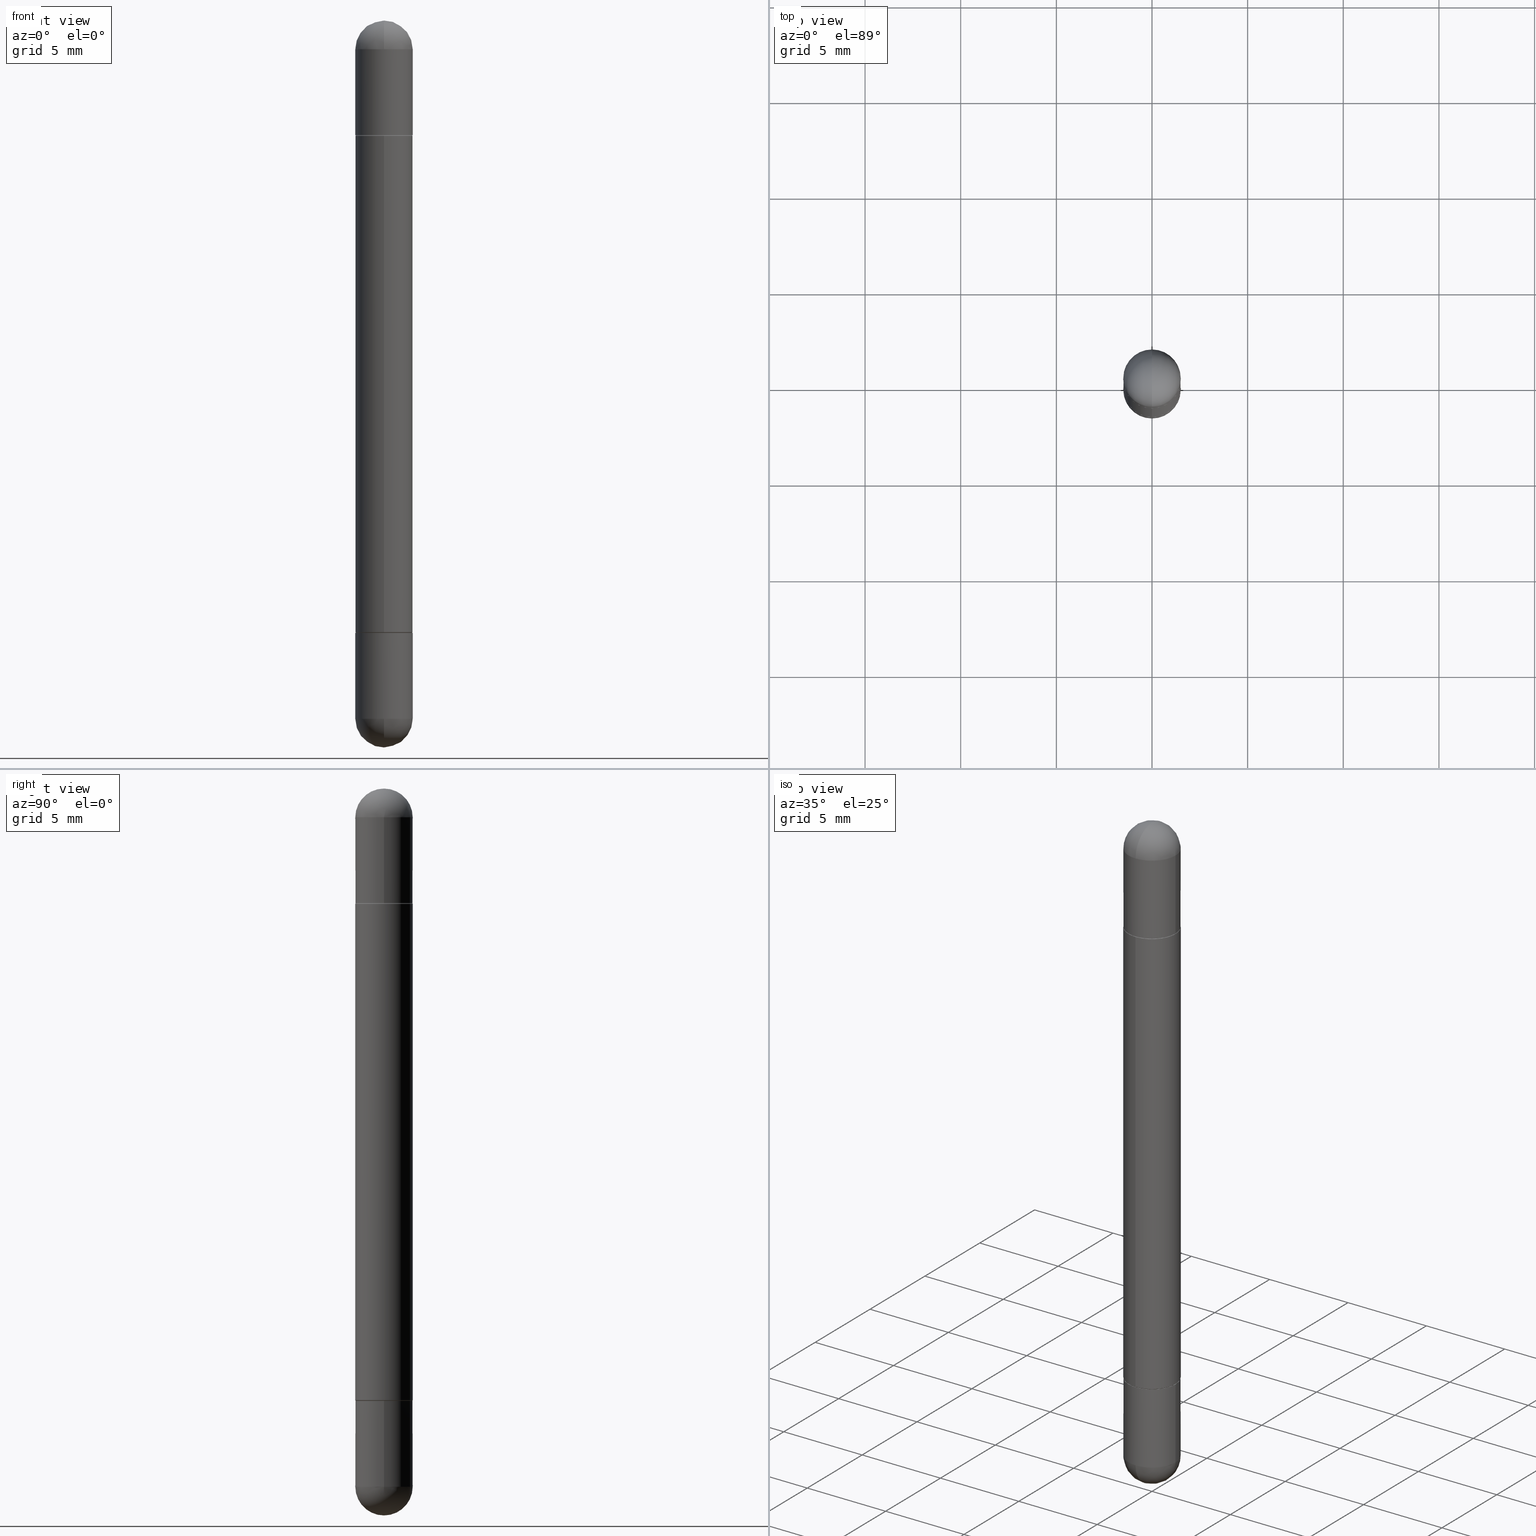
[diagram: canonical four-view strip — front | top / right | iso, engineering-drawing reading convention]
A machine part, canonical four-view strip (front | top / right | iso — engineering-drawing reading convention). The complete STEP part file that produces these views, byte-faithful:
ISO-10303-21;
HEADER;
FILE_DESCRIPTION (( 'STEP AP203' ),
    '1' );
FILE_NAME ('41522.STEP',
    '2024-03-01T12:45:31',
    ( '' ),
    ( '' ),
    'SwSTEP 2.0',
    'SolidWorks 2023',
    '' );
FILE_SCHEMA (( 'CONFIG_CONTROL_DESIGN' ));
ENDSEC;

DATA;
#1 = CALENDAR_DATE ( 2024, 1, 3 ) ;
#2 = CIRCLE ( 'NONE', #788, 0.05905000000000001914 ) ;
#3 = AXIS2_PLACEMENT_3D ( 'NONE', #287, #796, #14 ) ;
#4 = AXIS2_PLACEMENT_3D ( 'NONE', #51, #297, #739 ) ;
#5 = COORDINATED_UNIVERSAL_TIME_OFFSET ( 5, 0, .BEHIND. ) ;
#6 = ADVANCED_FACE ( 'NONE', ( #104 ), #302, .T. ) ;
#7 = CYLINDRICAL_SURFACE ( 'NONE', #22, 0.05905000000000001914 ) ;
#8 = ORIENTED_EDGE ( 'NONE', *, *, #141, .T. ) ;
#9 = DATE_AND_TIME ( #559, #142 ) ;
#10 = VERTEX_POINT ( 'NONE', #166 ) ;
#11 = ADVANCED_FACE ( 'NONE', ( #447 ), #140, .T. ) ;
#12 = VERTEX_POINT ( 'NONE', #409 ) ;
#13 = ORIENTED_EDGE ( 'NONE', *, *, #378, .T. ) ;
#14 = DIRECTION ( 'NONE',  ( -6.982962677686265922E-15, -1.000000000000000000, 4.706025828879006993E-15 ) ) ;
#15 = CARTESIAN_POINT ( 'NONE',  ( -0.05905000000000001914, -4.303062891628101254E-15, -0.05905000000000028976 ) ) ;
#16 = ORIENTED_EDGE ( 'NONE', *, *, #163, .T. ) ;
#17 = DIRECTION ( 'NONE',  ( 1.000000000000000000, -6.982962677686270655E-15, 0.000000000000000000 ) ) ;
#18 = EDGE_CURVE ( 'NONE', #411, #633, #43, .T. ) ;
#19 = EDGE_LOOP ( 'NONE', ( #646, #353, #225, #491, #219 ) ) ;
#20 = CYLINDRICAL_SURFACE ( 'NONE', #495, 0.05905000000000007465 ) ;
#21 = AXIS2_PLACEMENT_3D ( 'NONE', #146, #393, #640 ) ;
#22 = AXIS2_PLACEMENT_3D ( 'NONE', #644, #780, #337 ) ;
#23 = ORIENTED_EDGE ( 'NONE', *, *, #627, .T. ) ;
#24 = DIRECTION ( 'NONE',  ( -4.937700262165390546E-15, -0.7071067811866658115, -0.7071067811864292230 ) ) ;
#25 = CC_DESIGN_APPROVAL ( #307, ( #450 ) ) ;
#26 = CARTESIAN_POINT ( 'NONE',  ( 4.123439461174084467E-16, 0.05904999999999487742, -0.05905000000000008159 ) ) ;
#27 = EDGE_LOOP ( 'NONE', ( #220, #770, #701, #391 ) ) ;
#28 = ORIENTED_EDGE ( 'NONE', *, *, #192, .T. ) ;
#29 = APPROVAL_DATE_TIME ( #143, #84 ) ;
#30 = ORIENTED_EDGE ( 'NONE', *, *, #132, .T. ) ;
#31 = LINE ( 'NONE', #395, #76 ) ;
#32 = DIRECTION ( 'NONE',  ( -2.452862621315973370E-29, 3.480892974745964605E-15, 1.000000000000000000 ) ) ;
#33 = DIRECTION ( 'NONE',  ( 1.000000000000000000, -6.982962677686265922E-15, 4.883557194083112340E-29 ) ) ;
#34 = ORIENTED_EDGE ( 'NONE', *, *, #420, .T. ) ;
#35 = ORIENTED_EDGE ( 'NONE', *, *, #485, .T. ) ;
#36 = ORIENTED_EDGE ( 'NONE', *, *, #378, .F. ) ;
#37 = ADVANCED_FACE ( 'NONE', ( #339 ), #20, .T. ) ;
#38 = CARTESIAN_POINT ( 'NONE',  ( 0.05905000000000001914, -4.811261284925853162E-15, -0.2362000000000003264 ) ) ;
#39 = DIRECTION ( 'NONE',  ( -6.982962677686265922E-15, -1.000000000000000000, -3.480892974745964605E-15 ) ) ;
#40 = DIRECTION ( 'NONE',  ( -6.982962677686265922E-15, -1.000000000000000000, -3.529519371659254850E-15 ) ) ;
#41 = CARTESIAN_POINT ( 'NONE',  ( 3.090361616595994104E-29, -4.385577058882440771E-15, -1.259899999999999798 ) ) ;
#42 = ORIENTED_EDGE ( 'NONE', *, *, #231, .F. ) ;
#43 = CIRCLE ( 'NONE', #21, 0.05905000000000001914 ) ;
#44 = CARTESIAN_POINT ( 'NONE',  ( 3.090361616595994104E-29, -4.385577058882440771E-15, -0.2362000000000003264 ) ) ;
#45 = EDGE_CURVE ( 'NONE', #211, #411, #137, .T. ) ;
#46 = AXIS2_PLACEMENT_3D ( 'NONE', #174, #180, #549 ) ;
#47 = DIRECTION ( 'NONE',  ( -2.452862621315973370E-29, 3.480892974745964605E-15, -1.000000000000000000 ) ) ;
#48 = FACE_OUTER_BOUND ( 'NONE', #218, .T. ) ;
#49 =( GEOMETRIC_REPRESENTATION_CONTEXT ( 3 ) GLOBAL_UNCERTAINTY_ASSIGNED_CONTEXT ( ( #410 ) ) GLOBAL_UNIT_ASSIGNED_CONTEXT ( ( #322, #757, #436 ) ) REPRESENTATION_CONTEXT ( 'NONE', 'WORKASPACE' ) );
#50 = DIRECTION ( 'NONE',  ( -2.445468806185136597E-29, 3.491481338843145583E-15, 1.000000000000000000 ) ) ;
#51 = CARTESIAN_POINT ( 'NONE',  ( 3.183141170014464762E-29, -5.491615626124592102E-15, -0.05905000000000028976 ) ) ;
#52 = CARTESIAN_POINT ( 'NONE',  ( 3.081046148912652946E-29, -4.398917338808479031E-15, -1.259899999999999798 ) ) ;
#53 = CARTESIAN_POINT ( 'NONE',  ( -4.123439461173745257E-16, -0.05905000000000007465, -1.496100000000000430 ) ) ;
#54 = ORIENTED_EDGE ( 'NONE', *, *, #555, .F. ) ;
#55 = ADVANCED_FACE ( 'NONE', ( #818 ), #522, .T. ) ;
#56 = CARTESIAN_POINT ( 'NONE',  ( 3.514260947928350449E-29, -5.017433257984542594E-15, -1.437049999999999939 ) ) ;
#57 = CARTESIAN_POINT ( 'NONE',  ( -4.123439461173745257E-16, -0.05905000000000007465, -1.496100000000000430 ) ) ;
#58 = AXIS2_PLACEMENT_3D ( 'NONE', #89, #583, #100 ) ;
#59 = AXIS2_PLACEMENT_3D ( 'NONE', #41, #367, #300 ) ;
#60 = DIRECTION ( 'NONE',  ( 6.982962677686266711E-15, 1.000000000000000000, 0.000000000000000000 ) ) ;
#61 = AXIS2_PLACEMENT_3D ( 'NONE', #308, #415, #368 ) ;
#62 = DIRECTION ( 'NONE',  ( -2.452862621315973370E-29, 3.480892974745964605E-15, -1.000000000000000000 ) ) ;
#63 = CARTESIAN_POINT ( 'NONE',  ( 4.123439461174049462E-16, 0.05904999999999561988, -0.2362000000000000766 ) ) ;
#64 = APPROVAL_ROLE ( '' ) ;
#65 = AXIS2_PLACEMENT_3D ( 'NONE', #593, #247, #277 ) ;
#66 = COORDINATED_UNIVERSAL_TIME_OFFSET ( 5, 0, .BEHIND. ) ;
#67 = CC_DESIGN_PERSON_AND_ORGANIZATION_ASSIGNMENT ( #754, #632, ( #815 ) ) ;
#68 = PERSON_AND_ORGANIZATION ( #494, #382 ) ;
#69 = DIRECTION ( 'NONE',  ( 0.000000000000000000, 0.000000000000000000, 1.000000000000000000 ) ) ;
#70 = CC_DESIGN_PERSON_AND_ORGANIZATION_ASSIGNMENT ( #763, #434, ( #83 ) ) ;
#71 = CALENDAR_DATE ( 2024, 1, 3 ) ;
#72 = VERTEX_POINT ( 'NONE', #349 ) ;
#73 = CARTESIAN_POINT ( 'NONE',  ( 0.05905000000000001914, -4.811261284925853162E-15, -1.259899999999999798 ) ) ;
#74 = AXIS2_PLACEMENT_3D ( 'NONE', #165, #598, #235 ) ;
#75 = ORIENTED_EDGE ( 'NONE', *, *, #420, .F. ) ;
#76 = VECTOR ( 'NONE', #105, 39.37007874015748143 ) ;
#77 = DATE_AND_TIME ( #194, #700 ) ;
#78 = EDGE_CURVE ( 'NONE', #708, #265, #582, .T. ) ;
#79 = ORIENTED_EDGE ( 'NONE', *, *, #446, .T. ) ;
#80 = VERTEX_POINT ( 'NONE', #26 ) ;
#81 = ORIENTED_EDGE ( 'NONE', *, *, #595, .T. ) ;
#82 = DIRECTION ( 'NONE',  ( -2.445468806185136877E-29, 3.491481338843145188E-15, -1.000000000000000000 ) ) ;
#83 = PRODUCT_DEFINITION ( 'UNKNOWN', '', #450, #724 ) ;
#84 = APPROVAL ( #504, 'UNSPECIFIED' ) ;
#85 = DIRECTION ( 'NONE',  ( -1.000000000000000000, 7.105427357601001070E-15, -4.926315508542082329E-29 ) ) ;
#86 = EDGE_LOOP ( 'NONE', ( #91, #767 ) ) ;
#87 = ORIENTED_EDGE ( 'NONE', *, *, #553, .T. ) ;
#88 = FACE_OUTER_BOUND ( 'NONE', #511, .T. ) ;
#89 = CARTESIAN_POINT ( 'NONE',  ( 3.090361616595994104E-29, -4.385577058882440771E-15, -0.2362000000000003264 ) ) ;
#90 = CARTESIAN_POINT ( 'NONE',  ( -0.05905000000000001914, -4.303062891628101254E-15, -0.2362000000000003264 ) ) ;
#91 = ORIENTED_EDGE ( 'NONE', *, *, #677, .T. ) ;
#92 = CARTESIAN_POINT ( 'NONE',  ( 3.514260947928350449E-29, -5.017433257984542594E-15, -1.437049999999999939 ) ) ;
#93 = ORIENTED_EDGE ( 'NONE', *, *, #329, .T. ) ;
#94 = VERTEX_POINT ( 'NONE', #169 ) ;
#95 = CIRCLE ( 'NONE', #801, 0.05905000000000001914 ) ;
#96 = CONICAL_SURFACE ( 'NONE', #124, 0.05804999999999999744, 0.7853981633976190313 ) ;
#97 = EDGE_LOOP ( 'NONE', ( #150, #79, #774, #42, #575 ) ) ;
#98 = FACE_OUTER_BOUND ( 'NONE', #216, .T. ) ;
#99 = AXIS2_PLACEMENT_3D ( 'NONE', #303, #298, #619 ) ;
#100 = DIRECTION ( 'NONE',  ( -6.982962677686265922E-15, -1.000000000000000000, -3.480892974745964605E-15 ) ) ;
#101 = CARTESIAN_POINT ( 'NONE',  ( 0.000000000000000000, 0.000000000000000000, -1.496100000000000207 ) ) ;
#102 = DIRECTION ( 'NONE',  ( 1.000000000000000000, -6.982962677686270655E-15, 0.000000000000000000 ) ) ;
#103 = ORIENTED_EDGE ( 'NONE', *, *, #600, .T. ) ;
#104 = FACE_OUTER_BOUND ( 'NONE', #183, .T. ) ;
#105 = DIRECTION ( 'NONE',  ( -2.452862621315973651E-29, 3.480892974745964605E-15, -1.000000000000000000 ) ) ;
#106 = CARTESIAN_POINT ( 'NONE',  ( 3.090361616595994104E-29, -4.385577058882440771E-15, -0.2362000000000003264 ) ) ;
#107 = EDGE_LOOP ( 'NONE', ( #472, #34, #670, #400 ) ) ;
#108 = ORIENTED_EDGE ( 'NONE', *, *, #529, .F. ) ;
#109 = ADVANCED_FACE ( 'NONE', ( #215 ), #584, .T. ) ;
#110 = ORIENTED_EDGE ( 'NONE', *, *, #444, .T. ) ;
#111 = DIRECTION ( 'NONE',  ( -0.000000000000000000, -0.000000000000000000, -1.000000000000000000 ) ) ;
#112 = CARTESIAN_POINT ( 'NONE',  ( 3.514260947928350449E-29, -5.017433257984542594E-15, -0.05905000000000028976 ) ) ;
#113 = DIRECTION ( 'NONE',  ( 1.000000000000000000, -6.982962677686270655E-15, 0.000000000000000000 ) ) ;
#114 = PLANE ( 'NONE',  #345 ) ;
#115 = ORIENTED_EDGE ( 'NONE', *, *, #314, .F. ) ;
#116 = DIRECTION ( 'NONE',  ( -6.982962677686265922E-15, -1.000000000000000000, -4.626330217890363814E-15 ) ) ;
#117 = PLANE ( 'NONE',  #737 ) ;
#118 = ADVANCED_FACE ( 'NONE', ( #271 ), #289, .T. ) ;
#119 = ORIENTED_EDGE ( 'NONE', *, *, #677, .F. ) ;
#120 = CYLINDRICAL_SURFACE ( 'NONE', #469, 0.05905000000000007465 ) ;
#121 = DIRECTION ( 'NONE',  ( 2.438088387897960049E-29, -3.491481338843145188E-15, 1.000000000000000000 ) ) ;
#122 = SPHERICAL_SURFACE ( 'NONE', #716, 0.05905000000000025506 ) ;
#123 = LINE ( 'NONE', #810, #721 ) ;
#124 = AXIS2_PLACEMENT_3D ( 'NONE', #44, #535, #775 ) ;
#125 = DIRECTION ( 'NONE',  ( 2.445468806185136597E-29, -3.491481338843145583E-15, 1.000000000000000000 ) ) ;
#126 = EDGE_CURVE ( 'NONE', #263, #187, #384, .T. ) ;
#127 = FACE_OUTER_BOUND ( 'NONE', #744, .T. ) ;
#128 = FACE_OUTER_BOUND ( 'NONE', #324, .T. ) ;
#129 = APPLICATION_PROTOCOL_DEFINITION ( 'international standard', 'config_control_design', 1994, #309 ) ;
#130 = FACE_OUTER_BOUND ( 'NONE', #394, .T. ) ;
#131 = CIRCLE ( 'NONE', #585, 0.05905000000000013710 ) ;
#132 = EDGE_CURVE ( 'NONE', #187, #641, #313, .T. ) ;
#133 = DIRECTION ( 'NONE',  ( -1.000000000000000000, 6.982962677686265922E-15, -4.883557194083112340E-29 ) ) ;
#134 = APPROVAL_ROLE ( '' ) ;
#135 = DATE_AND_TIME ( #1, #275 ) ;
#136 = ORIENTED_EDGE ( 'NONE', *, *, #512, .T. ) ;
#137 = CIRCLE ( 'NONE', #483, 0.05905000000000025506 ) ;
#138 = ORIENTED_EDGE ( 'NONE', *, *, #163, .F. ) ;
#139 = AXIS2_PLACEMENT_3D ( 'NONE', #435, #817, #500 ) ;
#140 = SPHERICAL_SURFACE ( 'NONE', #448, 0.05905000000000025506 ) ;
#141 = EDGE_CURVE ( 'NONE', #471, #201, #720, .T. ) ;
#142 = LOCAL_TIME ( 7, 45, 31.00000000000000000, #687 ) ;
#143 = DATE_AND_TIME ( #663, #684 ) ;
#144 = ORIENTED_EDGE ( 'NONE', *, *, #344, .F. ) ;
#145 = FACE_OUTER_BOUND ( 'NONE', #648, .T. ) ;
#146 = CARTESIAN_POINT ( 'NONE',  ( 3.514260947928350449E-29, -5.017433257984542594E-15, -0.05905000000000028976 ) ) ;
#147 = EDGE_LOOP ( 'NONE', ( #36, #16, #658, #795 ) ) ;
#148 = LINE ( 'NONE', #590, #532 ) ;
#149 = CARTESIAN_POINT ( 'NONE',  ( -4.053609834396568584E-16, -0.05805000000000438282, -1.259899999999999576 ) ) ;
#150 = ORIENTED_EDGE ( 'NONE', *, *, #695, .F. ) ;
#151 = ORIENTED_EDGE ( 'NONE', *, *, #618, .F. ) ;
#152 = VERTEX_POINT ( 'NONE', #728 ) ;
#153 = CARTESIAN_POINT ( 'NONE',  ( -4.123439461173499231E-16, -0.05905000000000267674, -0.7480500000000001037 ) ) ;
#154 = DIRECTION ( 'NONE',  ( 2.452862621315973370E-29, -3.480892974745964605E-15, 1.000000000000000000 ) ) ;
#155 = ORIENTED_EDGE ( 'NONE', *, *, #186, .T. ) ;
#156 = ORIENTED_EDGE ( 'NONE', *, *, #538, .F. ) ;
#157 = VECTOR ( 'NONE', #319, 39.37007874015748143 ) ;
#158 = VERTEX_POINT ( 'NONE', #200 ) ;
#159 = AXIS2_PLACEMENT_3D ( 'NONE', #63, #673, #239 ) ;
#160 = VERTEX_POINT ( 'NONE', #442 ) ;
#161 = FACE_OUTER_BOUND ( 'NONE', #27, .T. ) ;
#162 = DIRECTION ( 'NONE',  ( 1.000000000000000000, -6.982962677686266711E-15, 0.000000000000000000 ) ) ;
#163 = EDGE_CURVE ( 'NONE', #519, #424, #689, .T. ) ;
#164 = VERTEX_POINT ( 'NONE', #15 ) ;
#165 = CARTESIAN_POINT ( 'NONE',  ( 3.090361616595994104E-29, -4.385577058882440771E-15, -0.2362000000000003264 ) ) ;
#166 = CARTESIAN_POINT ( 'NONE',  ( 4.016821577695544194E-16, 0.05804999999999560512, -0.2362000000000001321 ) ) ;
#167 = ORIENTED_EDGE ( 'NONE', *, *, #805, .T. ) ;
#168 = DIRECTION ( 'NONE',  ( 1.000000000000000000, -6.982962677686270655E-15, 0.000000000000000000 ) ) ;
#169 = CARTESIAN_POINT ( 'NONE',  ( 3.330070981488499955E-29, -5.694171829508798064E-15, -3.414809992080329023E-17 ) ) ;
#170 = ORIENTED_EDGE ( 'NONE', *, *, #126, .T. ) ;
#171 = DIRECTION ( 'NONE',  ( -2.445468806185136597E-29, 3.491481338843145583E-15, 1.000000000000000000 ) ) ;
#172 = EDGE_CURVE ( 'NONE', #637, #366, #272, .T. ) ;
#173 = CARTESIAN_POINT ( 'NONE',  ( 3.090361616595994104E-29, -4.385577058882440771E-15, -0.2362000000000003264 ) ) ;
#174 = CARTESIAN_POINT ( 'NONE',  ( 0.000000000000000000, 0.000000000000000000, 0.000000000000000000 ) ) ;
#175 = FACE_OUTER_BOUND ( 'NONE', #390, .T. ) ;
#176 = EDGE_CURVE ( 'NONE', #594, #366, #705, .T. ) ;
#177 = AXIS2_PLACEMENT_3D ( 'NONE', #335, #154, #40 ) ;
#178 = DIRECTION ( 'NONE',  ( -1.000000000000000000, 6.982962677686265922E-15, 4.883557194083112340E-29 ) ) ;
#179 = AXIS2_PLACEMENT_3D ( 'NONE', #718, #111, #599 ) ;
#180 = DIRECTION ( 'NONE',  ( -2.445468806185136597E-29, 3.491481338843145583E-15, 1.000000000000000000 ) ) ;
#181 = CARTESIAN_POINT ( 'NONE',  ( 3.514260947928350449E-29, -5.017433257984542594E-15, -0.05905000000000028976 ) ) ;
#182 = FACE_OUTER_BOUND ( 'NONE', #725, .T. ) ;
#183 = EDGE_LOOP ( 'NONE', ( #343, #103, #54, #356 ) ) ;
#184 = CARTESIAN_POINT ( 'NONE',  ( 3.087908753974678912E-29, -4.382096165907695555E-15, -0.2372000000000001330 ) ) ;
#185 = DIRECTION ( 'NONE',  ( 2.452862621315973370E-29, -3.480892974745964605E-15, 1.000000000000000000 ) ) ;
#186 = EDGE_CURVE ( 'NONE', #263, #781, #735, .T. ) ;
#187 = VERTEX_POINT ( 'NONE', #90 ) ;
#188 = DIRECTION ( 'NONE',  ( -2.452862621315973370E-29, 3.480892974745964605E-15, 1.000000000000000000 ) ) ;
#189 = DIRECTION ( 'NONE',  ( -6.982962677686265922E-15, -1.000000000000000000, -3.529519371659254850E-15 ) ) ;
#190 = CIRCLE ( 'NONE', #566, 0.05905000000000001914 ) ;
#191 = AXIS2_PLACEMENT_3D ( 'NONE', #243, #608, #542 ) ;
#192 = EDGE_CURVE ( 'NONE', #452, #637, #365, .T. ) ;
#193 = CARTESIAN_POINT ( 'NONE',  ( 3.081046148912652946E-29, -4.398917338808479031E-15, -0.2362000000000003264 ) ) ;
#194 = CALENDAR_DATE ( 2024, 1, 3 ) ;
#195 =( LENGTH_UNIT ( ) NAMED_UNIT ( * ) SI_UNIT ( $, .METRE. ) );
#196 = LINE ( 'NONE', #626, #719 ) ;
#197 = ADVANCED_FACE ( 'NONE', ( #48 ), #612, .T. ) ;
#198 = CIRCLE ( 'NONE', #403, 0.05804999999999999744 ) ;
#199 = AXIS2_PLACEMENT_3D ( 'NONE', #92, #578, #17 ) ;
#200 = CARTESIAN_POINT ( 'NONE',  ( 4.051124067684401762E-16, 0.05904999999999747257, -0.7480500000000001037 ) ) ;
#201 = VERTEX_POINT ( 'NONE', #490 ) ;
#202 = DIRECTION ( 'NONE',  ( -6.982962677686265922E-15, -1.000000000000000000, 4.706025828879006993E-15 ) ) ;
#203 = EDGE_LOOP ( 'NONE', ( #108, #722 ) ) ;
#204 = VECTOR ( 'NONE', #711, 39.37007874015748143 ) ;
#205 = AXIS2_PLACEMENT_3D ( 'NONE', #214, #334, #401 ) ;
#206 = DIRECTION ( 'NONE',  ( 1.000000000000000000, -6.982962677686265922E-15, -4.883557194083112340E-29 ) ) ;
#207 = CONICAL_SURFACE ( 'NONE', #441, 0.05804999999999999744, 0.7853981633976190313 ) ;
#208 = ORIENTED_EDGE ( 'NONE', *, *, #777, .F. ) ;
#209 = CARTESIAN_POINT ( 'NONE',  ( 3.514260947928350449E-29, -5.017433257984542594E-15, -1.437049999999999939 ) ) ;
#210 = DIRECTION ( 'NONE',  ( -7.105427357601001070E-15, -1.000000000000000000, 0.000000000000000000 ) ) ;
#211 = VERTEX_POINT ( 'NONE', #681 ) ;
#212 = ORIENTED_EDGE ( 'NONE', *, *, #141, .F. ) ;
#213 = ORIENTED_EDGE ( 'NONE', *, *, #78, .F. ) ;
#214 = CARTESIAN_POINT ( 'NONE',  ( 3.514260947928350449E-29, -5.017433257984542594E-15, -0.05905000000000028976 ) ) ;
#215 = FACE_OUTER_BOUND ( 'NONE', #19, .T. ) ;
#216 = EDGE_LOOP ( 'NONE', ( #208, #715, #717, #241 ) ) ;
#217 = CARTESIAN_POINT ( 'NONE',  ( 4.051124067684407185E-16, 0.05904999999999575866, -0.2371999999999999387 ) ) ;
#218 = EDGE_LOOP ( 'NONE', ( #523, #350, #327, #338 ) ) ;
#219 = ORIENTED_EDGE ( 'NONE', *, *, #529, .T. ) ;
#220 = ORIENTED_EDGE ( 'NONE', *, *, #600, .F. ) ;
#221 = CARTESIAN_POINT ( 'NONE',  ( 4.124700581087689546E-16, 0.05804999999999560512, -1.259900000000000020 ) ) ;
#222 = ADVANCED_FACE ( 'NONE', ( #609 ), #114, .F. ) ;
#223 = DIRECTION ( 'NONE',  ( -4.937700262165390546E-15, -0.7071067811866658115, 0.7071067811864292230 ) ) ;
#224 = CLOSED_SHELL ( 'NONE', ( #244, #793, #376, #254, #697, #37 ) ) ;
#225 = ORIENTED_EDGE ( 'NONE', *, *, #627, .F. ) ;
#226 = AXIS2_PLACEMENT_3D ( 'NONE', #209, #348, #783 ) ;
#227 = APPROVAL_PERSON_ORGANIZATION ( #68, #84, #134 ) ;
#228 = ORIENTED_EDGE ( 'NONE', *, *, #555, .T. ) ;
#229 = DIRECTION ( 'NONE',  ( -2.452862621315973370E-29, 3.480892974745964605E-15, -1.000000000000000000 ) ) ;
#230 = DIRECTION ( 'NONE',  ( 1.000000000000000000, -6.982962677686270655E-15, 0.000000000000000000 ) ) ;
#231 = EDGE_CURVE ( 'NONE', #633, #488, #764, .T. ) ;
#232 = CARTESIAN_POINT ( 'NONE',  ( 3.087908753974678912E-29, -4.382096165907695555E-15, -1.258900000000000130 ) ) ;
#233 = CARTESIAN_POINT ( 'NONE',  ( 3.183141170014464762E-29, -5.491615626124592102E-15, -0.05905000000000028976 ) ) ;
#234 = EDGE_CURVE ( 'NONE', #641, #187, #95, .T. ) ;
#235 = DIRECTION ( 'NONE',  ( -6.982962677686265922E-15, -1.000000000000000000, -3.529519371659254850E-15 ) ) ;
#236 = DIRECTION ( 'NONE',  ( -1.000000000000000000, 0.000000000000000000, 0.000000000000000000 ) ) ;
#237 = DIRECTION ( 'NONE',  ( -6.982962677686265922E-15, -1.000000000000000000, 3.480892974745964605E-15 ) ) ;
#238 = AXIS2_PLACEMENT_3D ( 'NONE', #577, #133, #461 ) ;
#239 = DIRECTION ( 'NONE',  ( -1.000000000000000000, 6.982962677686265922E-15, 4.876176775795935793E-29 ) ) ;
#240 = AXIS2_PLACEMENT_3D ( 'NONE', #173, #62, #361 ) ;
#241 = ORIENTED_EDGE ( 'NONE', *, *, #396, .T. ) ;
#242 = CARTESIAN_POINT ( 'NONE',  ( 0.000000000000000000, 0.000000000000000000, 0.000000000000000000 ) ) ;
#243 = CARTESIAN_POINT ( 'NONE',  ( 3.087908753974678912E-29, -4.382096165907695555E-15, -0.2372000000000001330 ) ) ;
#244 = ADVANCED_FACE ( 'NONE', ( #792 ), #460, .T. ) ;
#245 = DIRECTION ( 'NONE',  ( -2.452862621315973651E-29, 3.480892974745964605E-15, -1.000000000000000000 ) ) ;
#246 = EDGE_CURVE ( 'NONE', #406, #594, #198, .T. ) ;
#247 = DIRECTION ( 'NONE',  ( 2.452862621315973370E-29, -3.480892974745964605E-15, 1.000000000000000000 ) ) ;
#248 = LINE ( 'NONE', #53, #558 ) ;
#249 = CLOSED_SHELL ( 'NONE', ( #606, #11, #266, #765, #109 ) ) ;
#250 = CARTESIAN_POINT ( 'NONE',  ( -4.051124067683763770E-16, -0.05905000000000539678, -0.05905000000000049099 ) ) ;
#251 = AXIS2_PLACEMENT_3D ( 'NONE', #562, #503, #620 ) ;
#252 = APPROVAL_PERSON_ORGANIZATION ( #387, #307, #630 ) ;
#253 = PERSON_AND_ORGANIZATION_ROLE ( 'design_supplier' ) ;
#254 = ADVANCED_FACE ( 'NONE', ( #284 ), #727, .F. ) ;
#255 = FACE_OUTER_BOUND ( 'NONE', #514, .T. ) ;
#256 = CARTESIAN_POINT ( 'NONE',  ( 3.081046148912652946E-29, -4.398917338808479031E-15, -0.2362000000000003264 ) ) ;
#257 = PERSON_AND_ORGANIZATION ( #494, #382 ) ;
#258 = AXIS2_PLACEMENT_3D ( 'NONE', #106, #597, #39 ) ;
#259 = AXIS2_PLACEMENT_3D ( 'NONE', #317, #587, #267 ) ;
#260 = CIRCLE ( 'NONE', #326, 0.05804999999999999744 ) ;
#261 = ADVANCED_FACE ( 'NONE', ( #784 ), #660, .F. ) ;
#262 = DIRECTION ( 'NONE',  ( 6.982962677686265922E-15, 1.000000000000000000, 3.469747663417762014E-15 ) ) ;
#263 = VERTEX_POINT ( 'NONE', #288 ) ;
#264 = DIRECTION ( 'NONE',  ( 1.000000000000000000, 0.000000000000000000, 0.000000000000000000 ) ) ;
#265 = VERTEX_POINT ( 'NONE', #530 ) ;
#266 = ADVANCED_FACE ( 'NONE', ( #127 ), #122, .T. ) ;
#267 = DIRECTION ( 'NONE',  ( -1.000000000000000000, 6.982962677686265922E-15, -4.876176775795935793E-29 ) ) ;
#268 = CARTESIAN_POINT ( 'NONE',  ( 3.183141170014464762E-29, -5.491615626124592102E-15, -0.05905000000000028976 ) ) ;
#269 = ORIENTED_EDGE ( 'NONE', *, *, #570, .T. ) ;
#270 = LINE ( 'NONE', #779, #440 ) ;
#271 = FACE_OUTER_BOUND ( 'NONE', #147, .T. ) ;
#272 = CIRCLE ( 'NONE', #647, 0.05905000000000013710 ) ;
#273 = ORIENTED_EDGE ( 'NONE', *, *, #477, .T. ) ;
#274 = AXIS2_PLACEMENT_3D ( 'NONE', #283, #293, #341 ) ;
#275 = LOCAL_TIME ( 7, 45, 31.00000000000000000, #691 ) ;
#276 = ORIENTED_EDGE ( 'NONE', *, *, #811, .T. ) ;
#277 = DIRECTION ( 'NONE',  ( -6.982962677686265922E-15, -1.000000000000000000, -3.469747663417769114E-15 ) ) ;
#278 = CARTESIAN_POINT ( 'NONE',  ( -0.05905000000000001914, 4.051124067684090655E-16, -1.496100000000000207 ) ) ;
#279 = ORIENTED_EDGE ( 'NONE', *, *, #18, .T. ) ;
#280 = ORIENTED_EDGE ( 'NONE', *, *, #413, .F. ) ;
#281 = ADVANCED_FACE ( 'NONE', ( #738 ), #120, .T. ) ;
#282 = ORIENTED_EDGE ( 'NONE', *, *, #682, .F. ) ;
#283 = CARTESIAN_POINT ( 'NONE',  ( 3.081046148912652946E-29, -4.398917338808479031E-15, -0.2362000000000003264 ) ) ;
#284 = FACE_OUTER_BOUND ( 'NONE', #86, .T. ) ;
#285 = LINE ( 'NONE', #278, #635 ) ;
#286 = ORIENTED_EDGE ( 'NONE', *, *, #618, .T. ) ;
#287 = CARTESIAN_POINT ( 'NONE',  ( 3.090361616595994104E-29, -4.385577058882440771E-15, -1.259899999999999798 ) ) ;
#288 = CARTESIAN_POINT ( 'NONE',  ( -0.05905000000000001914, -4.303062891628101254E-15, -0.05905000000000028976 ) ) ;
#289 = SPHERICAL_SURFACE ( 'NONE', #238, 0.05905000000000025506 ) ;
#290 = VERTEX_POINT ( 'NONE', #607 ) ;
#291 = CIRCLE ( 'NONE', #251, 0.05905000000000013710 ) ;
#292 = VECTOR ( 'NONE', #377, 39.37007874015748143 ) ;
#293 = DIRECTION ( 'NONE',  ( 2.445468806185136597E-29, -3.491481338843145583E-15, 1.000000000000000000 ) ) ;
#294 = CARTESIAN_POINT ( 'NONE',  ( 3.090361616595994104E-29, -4.385577058882440771E-15, -1.259899999999999798 ) ) ;
#295 = EDGE_CURVE ( 'NONE', #424, #352, #2, .T. ) ;
#296 = APPLICATION_CONTEXT ( 'configuration controlled 3d designs of mechanical parts and assemblies' ) ;
#297 = DIRECTION ( 'NONE',  ( -1.000000000000000000, 6.982962677686265922E-15, 4.883557194083112340E-29 ) ) ;
#298 = DIRECTION ( 'NONE',  ( 1.000000000000000000, -6.860497997771530774E-15, -4.840798879624142912E-29 ) ) ;
#299 = DIRECTION ( 'NONE',  ( 1.000000000000000000, -6.982962677686265922E-15, -4.883557194083112340E-29 ) ) ;
#300 = DIRECTION ( 'NONE',  ( -6.982962677686265922E-15, -1.000000000000000000, 4.706025828879006993E-15 ) ) ;
#301 = VECTOR ( 'NONE', #747, 39.37007874015748143 ) ;
#302 = CONICAL_SURFACE ( 'NONE', #379, 0.05804999999999999744, 0.7853981633976190313 ) ;
#303 = CARTESIAN_POINT ( 'NONE',  ( 3.183141170014464762E-29, -5.491615626124592102E-15, -0.05905000000000028976 ) ) ;
#304 = CIRCLE ( 'NONE', #669, 0.05804999999999999744 ) ;
#305 = CIRCLE ( 'NONE', #533, 0.05905000000000025506 ) ;
#306 = DIRECTION ( 'NONE',  ( 6.860497997771530774E-15, 1.000000000000000000, 0.000000000000000000 ) ) ;
#307 = APPROVAL ( #443, 'UNSPECIFIED' ) ;
#308 = CARTESIAN_POINT ( 'NONE',  ( 3.514260947928350449E-29, -5.017433257984542594E-15, -0.05905000000000028976 ) ) ;
#309 = APPLICATION_CONTEXT ( 'configuration controlled 3d designs of mechanical parts and assemblies' ) ;
#310 = CARTESIAN_POINT ( 'NONE',  ( 3.090361616595994104E-29, -4.385577058882440771E-15, -0.2362000000000003264 ) ) ;
#311 = EDGE_CURVE ( 'NONE', #265, #708, #429, .T. ) ;
#312 = APPROVAL_DATE_TIME ( #9, #753 ) ;
#313 = CIRCLE ( 'NONE', #772, 0.05905000000000001914 ) ;
#314 = EDGE_CURVE ( 'NONE', #594, #406, #418, .T. ) ;
#315 = CONICAL_SURFACE ( 'NONE', #240, 0.05804999999999999744, 0.7853981633976190313 ) ;
#316 = DATE_TIME_ROLE ( 'classification_date' ) ;
#317 = CARTESIAN_POINT ( 'NONE',  ( 4.123439461174049462E-16, 0.05904999999999561988, -1.259900000000000020 ) ) ;
#318 = CARTESIAN_POINT ( 'NONE',  ( 0.000000000000000000, 0.000000000000000000, -0.7480500000000001037 ) ) ;
#319 = DIRECTION ( 'NONE',  ( -2.445468806185136877E-29, 3.491481338843145188E-15, -1.000000000000000000 ) ) ;
#320 = DATE_TIME_ROLE ( 'creation_date' ) ;
#321 = ADVANCED_FACE ( 'NONE', ( #175 ), #730, .T. ) ;
#322 =( CONVERSION_BASED_UNIT ( 'INCH', #568 ) LENGTH_UNIT ( ) NAMED_UNIT ( #417 ) );
#323 = AXIS2_PLACEMENT_3D ( 'NONE', #101, #601, #162 ) ;
#324 = EDGE_LOOP ( 'NONE', ( #75, #119, #713, #510 ) ) ;
#325 = AXIS2_PLACEMENT_3D ( 'NONE', #649, #596, #357 ) ;
#326 = AXIS2_PLACEMENT_3D ( 'NONE', #680, #185, #189 ) ;
#327 = ORIENTED_EDGE ( 'NONE', *, *, #538, .T. ) ;
#328 = PERSON_AND_ORGANIZATION_ROLE ( 'creator' ) ;
#329 = EDGE_CURVE ( 'NONE', #567, #263, #814, .T. ) ;
#330 = ORIENTED_EDGE ( 'NONE', *, *, #396, .F. ) ;
#331 = ORIENTED_EDGE ( 'NONE', *, *, #45, .F. ) ;
#332 = ORIENTED_EDGE ( 'NONE', *, *, #667, .T. ) ;
#333 = ORIENTED_EDGE ( 'NONE', *, *, #477, .F. ) ;
#334 = DIRECTION ( 'NONE',  ( 2.445468806185136597E-29, -3.491481338843145583E-15, 1.000000000000000000 ) ) ;
#335 = CARTESIAN_POINT ( 'NONE',  ( 3.090361616595994104E-29, -4.385577058882440771E-15, -0.2362000000000003264 ) ) ;
#336 = EDGE_CURVE ( 'NONE', #201, #454, #388, .T. ) ;
#337 = DIRECTION ( 'NONE',  ( 1.000000000000000000, -6.982962677686266711E-15, 0.000000000000000000 ) ) ;
#338 = ORIENTED_EDGE ( 'NONE', *, *, #634, .T. ) ;
#339 = FACE_OUTER_BOUND ( 'NONE', #661, .T. ) ;
#340 = VERTEX_POINT ( 'NONE', #416 ) ;
#341 = DIRECTION ( 'NONE',  ( 1.000000000000000000, -6.982962677686270655E-15, 0.000000000000000000 ) ) ;
#342 = DIRECTION ( 'NONE',  ( 2.445468806185136597E-29, -3.491481338843145583E-15, 1.000000000000000000 ) ) ;
#343 = ORIENTED_EDGE ( 'NONE', *, *, #314, .T. ) ;
#344 = EDGE_CURVE ( 'NONE', #452, #160, #773, .T. ) ;
#345 = AXIS2_PLACEMENT_3D ( 'NONE', #294, #797, #237 ) ;
#346 = ORIENTED_EDGE ( 'NONE', *, *, #695, .T. ) ;
#347 = AXIS2_PLACEMENT_3D ( 'NONE', #354, #229, #581 ) ;
#348 = DIRECTION ( 'NONE',  ( -2.445468806185136597E-29, 3.491481338843145583E-15, 1.000000000000000000 ) ) ;
#349 = CARTESIAN_POINT ( 'NONE',  ( 4.123439461174084467E-16, 0.05904999999999487742, -1.437050000000000161 ) ) ;
#350 = ORIENTED_EDGE ( 'NONE', *, *, #710, .T. ) ;
#351 = CARTESIAN_POINT ( 'NONE',  ( 3.081046148912652946E-29, -4.398917338808479031E-15, -0.2362000000000003264 ) ) ;
#352 = VERTEX_POINT ( 'NONE', #363 ) ;
#353 = ORIENTED_EDGE ( 'NONE', *, *, #485, .F. ) ;
#354 = CARTESIAN_POINT ( 'NONE',  ( 3.090361616595994104E-29, -4.385577058882440771E-15, -0.2362000000000003264 ) ) ;
#355 = DIRECTION ( 'NONE',  ( -2.452862621315973370E-29, 3.480892974745964605E-15, -1.000000000000000000 ) ) ;
#356 = ORIENTED_EDGE ( 'NONE', *, *, #176, .F. ) ;
#357 = DIRECTION ( 'NONE',  ( 1.000000000000000000, -6.982962677686270655E-15, 0.000000000000000000 ) ) ;
#358 = DIRECTION ( 'NONE',  ( -1.000000000000000000, 6.982962677686265922E-15, -4.883557194083112340E-29 ) ) ;
#359 = DIRECTION ( 'NONE',  ( 1.000000000000000000, -6.982962677686270655E-15, 0.000000000000000000 ) ) ;
#360 = AXIS2_PLACEMENT_3D ( 'NONE', #351, #525, #785 ) ;
#361 = DIRECTION ( 'NONE',  ( -6.982962677686265922E-15, -1.000000000000000000, -3.529519371659254850E-15 ) ) ;
#362 = CARTESIAN_POINT ( 'NONE',  ( 3.183141170014464762E-29, -5.491615626124592102E-15, -1.437049999999999939 ) ) ;
#363 = CARTESIAN_POINT ( 'NONE',  ( 0.05905000000000001914, -5.120519244513884944E-15, -1.437049999999999939 ) ) ;
#364 = CARTESIAN_POINT ( 'NONE',  ( 4.123439461174049462E-16, 0.05904999999999561988, -0.2362000000000000766 ) ) ;
#365 = LINE ( 'NONE', #809, #301 ) ;
#366 = VERTEX_POINT ( 'NONE', #678 ) ;
#367 = DIRECTION ( 'NONE',  ( -2.452862621315973370E-29, 3.480892974745964605E-15, 1.000000000000000000 ) ) ;
#368 = DIRECTION ( 'NONE',  ( 1.000000000000000000, -6.982962677686270655E-15, 0.000000000000000000 ) ) ;
#369 = FACE_OUTER_BOUND ( 'NONE', #664, .T. ) ;
#370 = ORIENTED_EDGE ( 'NONE', *, *, #295, .T. ) ;
#371 = CC_DESIGN_PERSON_AND_ORGANIZATION_ASSIGNMENT ( #438, #621, ( #629 ) ) ;
#372 = CARTESIAN_POINT ( 'NONE',  ( 3.183141170014464762E-29, -5.491615626124592102E-15, -0.05905000000000028976 ) ) ;
#373 = AXIS2_PLACEMENT_3D ( 'NONE', #242, #171, #544 ) ;
#374 = FACE_OUTER_BOUND ( 'NONE', #107, .T. ) ;
#375 = CIRCLE ( 'NONE', #656, 0.05905000000000001914 ) ;
#376 = ADVANCED_FACE ( 'NONE', ( #539 ), #799, .F. ) ;
#377 = DIRECTION ( 'NONE',  ( -4.937700262165390546E-15, -0.7071067811866658115, -0.7071067811864292230 ) ) ;
#378 = EDGE_CURVE ( 'NONE', #519, #72, #603, .T. ) ;
#379 = AXIS2_PLACEMENT_3D ( 'NONE', #527, #707, #202 ) ;
#380 = PLANE ( 'NONE',  #259 ) ;
#381 = CIRCLE ( 'NONE', #325, 0.05905000000000001914 ) ;
#382 = ORGANIZATION ( 'UNSPECIFIED', 'UNSPECIFIED', '' ) ;
#383 = ADVANCED_FACE ( 'NONE', ( #369 ), #482, .T. ) ;
#384 = LINE ( 'NONE', #631, #204 ) ;
#385 = COORDINATED_UNIVERSAL_TIME_OFFSET ( 5, 0, .BEHIND. ) ;
#386 = ADVANCED_FACE ( 'NONE', ( #182 ), #423, .T. ) ;
#387 = PERSON_AND_ORGANIZATION ( #494, #382 ) ;
#388 = CIRCLE ( 'NONE', #431, 0.05905000000000001914 ) ;
#389 = CIRCLE ( 'NONE', #405, 0.05905000000000007465 ) ;
#390 = EDGE_LOOP ( 'NONE', ( #212, #110, #370, #87, #445 ) ) ;
#391 = ORIENTED_EDGE ( 'NONE', *, *, #172, .F. ) ;
#392 = CARTESIAN_POINT ( 'NONE',  ( 3.330070981488499955E-29, -5.694171829508798064E-15, -1.496100000000000207 ) ) ;
#393 = DIRECTION ( 'NONE',  ( 2.445468806185136597E-29, -3.491481338843145583E-15, 1.000000000000000000 ) ) ;
#394 = EDGE_LOOP ( 'NONE', ( #638, #703 ) ) ;
#395 = CARTESIAN_POINT ( 'NONE',  ( 4.051124067684094106E-16, 0.05905000000000007465, -1.496099999999999985 ) ) ;
#396 = EDGE_CURVE ( 'NONE', #160, #452, #291, .T. ) ;
#397 = DIRECTION ( 'NONE',  ( 2.445468806185136597E-29, -3.491481338843145583E-15, 1.000000000000000000 ) ) ;
#398 = ORIENTED_EDGE ( 'NONE', *, *, #234, .T. ) ;
#399 = ORIENTED_EDGE ( 'NONE', *, *, #662, .F. ) ;
#400 = ORIENTED_EDGE ( 'NONE', *, *, #536, .F. ) ;
#401 = DIRECTION ( 'NONE',  ( 1.000000000000000000, -6.982962677686270655E-15, 0.000000000000000000 ) ) ;
#402 = DIRECTION ( 'NONE',  ( -6.982962677686265922E-15, -1.000000000000000000, 4.626330217890359081E-15 ) ) ;
#403 = AXIS2_PLACEMENT_3D ( 'NONE', #745, #188, #430 ) ;
#404 = AXIS2_PLACEMENT_3D ( 'NONE', #318, #69, #750 ) ;
#405 = AXIS2_PLACEMENT_3D ( 'NONE', #537, #798, #236 ) ;
#406 = VERTEX_POINT ( 'NONE', #758 ) ;
#407 = CARTESIAN_POINT ( 'NONE',  ( 0.05905000000000001914, -4.123439461173741806E-16, 2.879382386107500921E-30 ) ) ;
#408 = ORIENTED_EDGE ( 'NONE', *, *, #246, .F. ) ;
#409 = CARTESIAN_POINT ( 'NONE',  ( -0.05905000000000001914, -4.303062891628101254E-15, -0.2362000000000003264 ) ) ;
#410 = UNCERTAINTY_MEASURE_WITH_UNIT (LENGTH_MEASURE( 1.000000000000000082E-05 ), #322, 'distance_accuracy_value', 'NONE');
#411 = VERTEX_POINT ( 'NONE', #250 ) ;
#412 = CARTESIAN_POINT ( 'NONE',  ( 0.05905000000000001914, -5.120519244513884944E-15, -0.05905000000000028976 ) ) ;
#413 = EDGE_CURVE ( 'NONE', #454, #201, #690, .T. ) ;
#414 = MANIFOLD_SOLID_BREP ( 'Mirror4[1]', #224 ) ;
#415 = DIRECTION ( 'NONE',  ( 2.445468806185136597E-29, -3.491481338843145583E-15, 1.000000000000000000 ) ) ;
#416 = CARTESIAN_POINT ( 'NONE',  ( -4.053609834396568584E-16, -0.05805000000000438282, -0.2362000000000005484 ) ) ;
#417 = DIMENSIONAL_EXPONENTS ( 1.000000000000000000, 0.000000000000000000, 0.000000000000000000, 0.000000000000000000, 0.000000000000000000, 0.000000000000000000, 0.000000000000000000 ) ;
#418 = CIRCLE ( 'NONE', #59, 0.05804999999999999744 ) ;
#419 = DIRECTION ( 'NONE',  ( -6.982962677686265922E-15, -1.000000000000000000, -3.529519371659254850E-15 ) ) ;
#420 = EDGE_CURVE ( 'NONE', #10, #290, #196, .T. ) ;
#421 = DIRECTION ( 'NONE',  ( 2.445468806185136597E-29, -3.491481338843145583E-15, 1.000000000000000000 ) ) ;
#422 = ADVANCED_FACE ( 'NONE', ( #130 ), #380, .F. ) ;
#423 = CYLINDRICAL_SURFACE ( 'NONE', #761, 0.05905000000000007465 ) ;
#424 = VERTEX_POINT ( 'NONE', #451 ) ;
#425 = DIRECTION ( 'NONE',  ( 2.452862621315973370E-29, -3.480892974745964605E-15, 1.000000000000000000 ) ) ;
#426 = DIRECTION ( 'NONE',  ( 1.000000000000000000, -6.982962677686270655E-15, 0.000000000000000000 ) ) ;
#427 = PLANE ( 'NONE',  #159 ) ;
#428 = DIRECTION ( 'NONE',  ( -2.452862621315973370E-29, 3.480892974745964605E-15, -1.000000000000000000 ) ) ;
#429 = CIRCLE ( 'NONE', #74, 0.05804999999999999744 ) ;
#430 = DIRECTION ( 'NONE',  ( -6.982962677686265922E-15, -1.000000000000000000, 4.706025828879006993E-15 ) ) ;
#431 = AXIS2_PLACEMENT_3D ( 'NONE', #52, #50, #804 ) ;
#432 = DIRECTION ( 'NONE',  ( -2.452862621315973651E-29, 3.480892974745964605E-15, -1.000000000000000000 ) ) ;
#433 = ADVANCED_FACE ( 'NONE', ( #145 ), #7, .T. ) ;
#434 = PERSON_AND_ORGANIZATION_ROLE ( 'creator' ) ;
#435 = CARTESIAN_POINT ( 'NONE',  ( 3.081046148912652946E-29, -4.398917338808479031E-15, -1.259899999999999798 ) ) ;
#436 =( NAMED_UNIT ( * ) SI_UNIT ( $, .STERADIAN. ) SOLID_ANGLE_UNIT ( ) );
#437 = DIRECTION ( 'NONE',  ( 4.851104656541791790E-15, 0.7071067811866706965, -0.7071067811864243380 ) ) ;
#438 = PERSON_AND_ORGANIZATION ( #494, #382 ) ;
#439 = VECTOR ( 'NONE', #223, 39.37007874015748143 ) ;
#440 = VECTOR ( 'NONE', #82, 39.37007874015748143 ) ;
#441 = AXIS2_PLACEMENT_3D ( 'NONE', #310, #746, #419 ) ;
#442 = CARTESIAN_POINT ( 'NONE',  ( -4.123439461173440560E-16, -0.05905000000000451554, -0.2372000000000003272 ) ) ;
#443 = APPROVAL_STATUS ( 'not_yet_approved' ) ;
#444 = EDGE_CURVE ( 'NONE', #471, #424, #698, .T. ) ;
#445 = ORIENTED_EDGE ( 'NONE', *, *, #336, .F. ) ;
#446 = EDGE_CURVE ( 'NONE', #164, #12, #285, .T. ) ;
#447 = FACE_OUTER_BOUND ( 'NONE', #786, .T. ) ;
#448 = AXIS2_PLACEMENT_3D ( 'NONE', #268, #206, #513 ) ;
#449 = AXIS2_PLACEMENT_3D ( 'NONE', #759, #693, #262 ) ;
#450 = PRODUCT_DEFINITION_FORMATION_WITH_SPECIFIED_SOURCE ( 'ANY', '', #629, .NOT_KNOWN. ) ;
#451 = CARTESIAN_POINT ( 'NONE',  ( -4.195754854663065087E-16, -0.05905000000000539678, -1.437049999999999716 ) ) ;
#452 = VERTEX_POINT ( 'NONE', #217 ) ;
#453 = EDGE_CURVE ( 'NONE', #12, #488, #653, .T. ) ;
#454 = VERTEX_POINT ( 'NONE', #73 ) ;
#455 = DIRECTION ( 'NONE',  ( 5.024295867788919882E-15, 0.7071067811866706965, 0.7071067811864243380 ) ) ;
#456 = CARTESIAN_POINT ( 'NONE',  ( 3.183141170014464762E-29, -5.491615626124592102E-15, -1.437049999999999939 ) ) ;
#457 = ORIENTED_EDGE ( 'NONE', *, *, #311, .T. ) ;
#458 = ORIENTED_EDGE ( 'NONE', *, *, #570, .F. ) ;
#459 = CARTESIAN_POINT ( 'NONE',  ( 3.090361616595994104E-29, -4.385577058882440771E-15, -0.2362000000000003264 ) ) ;
#460 = CYLINDRICAL_SURFACE ( 'NONE', #650, 0.05905000000000007465 ) ;
#461 = DIRECTION ( 'NONE',  ( 6.982962677686265922E-15, 1.000000000000000000, -4.626330217890349615E-15 ) ) ;
#462 = ORIENTED_EDGE ( 'NONE', *, *, #344, .T. ) ;
#463 = ORIENTED_EDGE ( 'NONE', *, *, #667, .F. ) ;
#464 = ORIENTED_EDGE ( 'NONE', *, *, #234, .F. ) ;
#465 = ORIENTED_EDGE ( 'NONE', *, *, #655, .F. ) ;
#466 = CYLINDRICAL_SURFACE ( 'NONE', #683, 0.05905000000000001914 ) ;
#467 = CARTESIAN_POINT ( 'NONE',  ( 3.183141170014464762E-29, -5.491615626124592102E-15, -1.437049999999999939 ) ) ;
#468 = ADVANCED_FACE ( 'NONE', ( #255 ), #756, .T. ) ;
#469 = AXIS2_PLACEMENT_3D ( 'NONE', #615, #355, #116 ) ;
#470 = CIRCLE ( 'NONE', #179, 0.05905000000000007465 ) ;
#471 = VERTEX_POINT ( 'NONE', #501 ) ;
#472 = ORIENTED_EDGE ( 'NONE', *, *, #505, .F. ) ;
#473 = ORIENTED_EDGE ( 'NONE', *, *, #710, .F. ) ;
#474 = CARTESIAN_POINT ( 'NONE',  ( 3.514260947928350449E-29, -5.017433257984542594E-15, -0.05905000000000028976 ) ) ;
#475 = CARTESIAN_POINT ( 'NONE',  ( 0.000000000000000000, 0.000000000000000000, -1.496100000000000207 ) ) ;
#476 = DIRECTION ( 'NONE',  ( -2.445468806185136877E-29, 3.491481338843145188E-15, 1.000000000000000000 ) ) ;
#477 = EDGE_CURVE ( 'NONE', #352, #72, #749, .T. ) ;
#478 = CARTESIAN_POINT ( 'NONE',  ( -4.053609834396568584E-16, -0.05805000000000438282, -1.259899999999999576 ) ) ;
#479 = ORIENTED_EDGE ( 'NONE', *, *, #553, .F. ) ;
#480 = CARTESIAN_POINT ( 'NONE',  ( 3.183141170014464762E-29, -5.491615626124592102E-15, -0.05905000000000028976 ) ) ;
#481 = EDGE_CURVE ( 'NONE', #586, #290, #736, .T. ) ;
#482 = CYLINDRICAL_SURFACE ( 'NONE', #46, 0.05905000000000001914 ) ;
#483 = AXIS2_PLACEMENT_3D ( 'NONE', #372, #541, #306 ) ;
#484 = VECTOR ( 'NONE', #524, 39.37007874015748143 ) ;
#485 = EDGE_CURVE ( 'NONE', #80, #164, #791, .T. ) ;
#486 = CIRCLE ( 'NONE', #61, 0.05905000000000001914 ) ;
#487 = CARTESIAN_POINT ( 'NONE',  ( -4.053609834396568584E-16, -0.05805000000000438282, -0.2362000000000005484 ) ) ;
#488 = VERTEX_POINT ( 'NONE', #38 ) ;
#489 = CARTESIAN_POINT ( 'NONE',  ( 4.016821577695544194E-16, 0.05804999999999560512, -0.2362000000000001321 ) ) ;
#490 = CARTESIAN_POINT ( 'NONE',  ( -0.05905000000000001914, -4.288599812930171320E-15, -1.259899999999999798 ) ) ;
#491 = ORIENTED_EDGE ( 'NONE', *, *, #231, .T. ) ;
#492 = DIRECTION ( 'NONE',  ( -6.982962677686265922E-15, -1.000000000000000000, -4.626330217890363814E-15 ) ) ;
#493 = CARTESIAN_POINT ( 'NONE',  ( 3.183141170014464762E-29, -5.491615626124592102E-15, -0.05905000000000028976 ) ) ;
#494 = PERSON ( 'UNSPECIFIED', 'UNSPECIFIED', 'UNSPECIFIED', ('UNSPECIFIED'), ('UNSPECIFIED'), ('UNSPECIFIED') ) ;
#495 = AXIS2_PLACEMENT_3D ( 'NONE', #520, #776, #733 ) ;
#496 = AXIS2_PLACEMENT_3D ( 'NONE', #112, #732, #359 ) ;
#497 = CARTESIAN_POINT ( 'NONE',  ( -4.051124067683763770E-16, -0.05905000000000539678, -0.05905000000000049099 ) ) ;
#498 = CIRCLE ( 'NONE', #4, 0.05905000000000025506 ) ;
#499 = MECHANICAL_CONTEXT ( 'NONE', #309, 'mechanical' ) ;
#500 = DIRECTION ( 'NONE',  ( 1.000000000000000000, -6.982962677686270655E-15, 0.000000000000000000 ) ) ;
#501 = CARTESIAN_POINT ( 'NONE',  ( -0.05905000000000001914, -4.288599812930171320E-15, -1.437049999999999939 ) ) ;
#502 = CARTESIAN_POINT ( 'NONE',  ( 0.000000000000000000, 0.000000000000000000, 0.000000000000000000 ) ) ;
#503 = DIRECTION ( 'NONE',  ( 2.452862621315973370E-29, -3.480892974745964605E-15, 1.000000000000000000 ) ) ;
#504 = APPROVAL_STATUS ( 'not_yet_approved' ) ;
#505 = EDGE_CURVE ( 'NONE', #10, #340, #304, .T. ) ;
#506 = LOCAL_TIME ( 7, 45, 31.00000000000000000, #5 ) ;
#507 = AXIS2_PLACEMENT_3D ( 'NONE', #808, #668, #742 ) ;
#508 = EDGE_LOOP ( 'NONE', ( #276, #136 ) ) ;
#509 = ADVANCED_FACE ( 'NONE', ( #161 ), #802, .T. ) ;
#510 = ORIENTED_EDGE ( 'NONE', *, *, #481, .T. ) ;
#511 = EDGE_LOOP ( 'NONE', ( #213, #723, #462, #572 ) ) ;
#512 = EDGE_CURVE ( 'NONE', #158, #580, #470, .T. ) ;
#513 = DIRECTION ( 'NONE',  ( 6.982962677686265922E-15, 1.000000000000000000, 3.469747663417762014E-15 ) ) ;
#514 = EDGE_LOOP ( 'NONE', ( #473, #167, #93, #155 ) ) ;
#515 = ORIENTED_EDGE ( 'NONE', *, *, #172, .T. ) ;
#516 = CARTESIAN_POINT ( 'NONE',  ( -4.123439461173440560E-16, -0.05905000000000451554, -0.2372000000000003272 ) ) ;
#517 = CARTESIAN_POINT ( 'NONE',  ( 3.087908753974678912E-29, -4.382096165907695555E-15, -1.258900000000000130 ) ) ;
#518 = CIRCLE ( 'NONE', #274, 0.05905000000000001914 ) ;
#519 = VERTEX_POINT ( 'NONE', #392 ) ;
#520 = CARTESIAN_POINT ( 'NONE',  ( 0.000000000000000000, 0.000000000000000000, -1.496100000000000207 ) ) ;
#521 = DIRECTION ( 'NONE',  ( -6.982962677686265922E-15, -1.000000000000000000, -3.529519371659254850E-15 ) ) ;
#522 = SPHERICAL_SURFACE ( 'NONE', #602, 0.05905000000000025506 ) ;
#523 = ORIENTED_EDGE ( 'NONE', *, *, #805, .F. ) ;
#524 = DIRECTION ( 'NONE',  ( -2.445468806185136877E-29, 3.491481338843145188E-15, 1.000000000000000000 ) ) ;
#525 = DIRECTION ( 'NONE',  ( 2.445468806185136597E-29, -3.491481338843145583E-15, 1.000000000000000000 ) ) ;
#526 = ORIENTED_EDGE ( 'NONE', *, *, #329, .F. ) ;
#527 = CARTESIAN_POINT ( 'NONE',  ( 3.090361616595994104E-29, -4.385577058882440771E-15, -1.259899999999999798 ) ) ;
#528 = DIRECTION ( 'NONE',  ( -2.452862621315973370E-29, 3.480892974745964605E-15, 1.000000000000000000 ) ) ;
#529 = EDGE_CURVE ( 'NONE', #488, #12, #518, .T. ) ;
#530 = CARTESIAN_POINT ( 'NONE',  ( -4.053609834396568584E-16, -0.05805000000000438282, -0.2362000000000005484 ) ) ;
#531 = DIRECTION ( 'NONE',  ( 6.982962677686265922E-15, 1.000000000000000000, -4.626330217890349615E-15 ) ) ;
#532 = VECTOR ( 'NONE', #24, 39.37007874015748143 ) ;
#533 = AXIS2_PLACEMENT_3D ( 'NONE', #493, #178, #611 ) ;
#534 = DIRECTION ( 'NONE',  ( 1.000000000000000000, -6.982962677686270655E-15, 0.000000000000000000 ) ) ;
#535 = DIRECTION ( 'NONE',  ( -2.452862621315973370E-29, 3.480892974745964605E-15, -1.000000000000000000 ) ) ;
#536 = EDGE_CURVE ( 'NONE', #340, #586, #148, .T. ) ;
#537 = CARTESIAN_POINT ( 'NONE',  ( 1.834863883875414185E-29, -2.603881989758719060E-15, -0.7480500000000001037 ) ) ;
#538 = EDGE_CURVE ( 'NONE', #781, #152, #381, .T. ) ;
#539 = FACE_OUTER_BOUND ( 'NONE', #508, .T. ) ;
#540 = CC_DESIGN_DATE_AND_TIME_ASSIGNMENT ( #694, #316, ( #815 ) ) ;
#541 = DIRECTION ( 'NONE',  ( 1.000000000000000000, -6.860497997771530774E-15, -4.840798879624142912E-29 ) ) ;
#542 = DIRECTION ( 'NONE',  ( -6.982962677686265922E-15, -1.000000000000000000, -3.469747663417769114E-15 ) ) ;
#543 = VECTOR ( 'NONE', #476, 39.37007874015748143 ) ;
#544 = DIRECTION ( 'NONE',  ( 1.000000000000000000, -6.982962677686266711E-15, 4.876176775795935793E-29 ) ) ;
#545 = AXIS2_PLACEMENT_3D ( 'NONE', #362, #33, #60 ) ;
#546 = CC_DESIGN_APPROVAL ( #753, ( #83 ) ) ;
#547 = EDGE_LOOP ( 'NONE', ( #138, #13, #333, #573 ) ) ;
#548 = FACE_OUTER_BOUND ( 'NONE', #699, .T. ) ;
#549 = DIRECTION ( 'NONE',  ( 1.000000000000000000, -6.982962677686266711E-15, 4.876176775795935793E-29 ) ) ;
#550 = ORIENTED_EDGE ( 'NONE', *, *, #192, .F. ) ;
#551 = DIRECTION ( 'NONE',  ( 6.982962677686265922E-15, 1.000000000000000000, 3.469747663417762014E-15 ) ) ;
#552 = CYLINDRICAL_SURFACE ( 'NONE', #507, 0.05905000000000001914 ) ;
#553 = EDGE_CURVE ( 'NONE', #352, #454, #576, .T. ) ;
#554 = CARTESIAN_POINT ( 'NONE',  ( 0.05905000000000001914, -4.811261284925853162E-15, -0.2362000000000003264 ) ) ;
#555 = EDGE_CURVE ( 'NONE', #366, #637, #131, .T. ) ;
#556 = AXIS2_PLACEMENT_3D ( 'NONE', #645, #654, #102 ) ;
#557 = APPROVAL_DATE_TIME ( #77, #307 ) ;
#558 = VECTOR ( 'NONE', #432, 39.37007874015748143 ) ;
#559 = CALENDAR_DATE ( 2024, 1, 3 ) ;
#560 = ADVANCED_FACE ( 'NONE', ( #98 ), #96, .T. ) ;
#561 = DIRECTION ( 'NONE',  ( 0.000000000000000000, 0.000000000000000000, 1.000000000000000000 ) ) ;
#562 = CARTESIAN_POINT ( 'NONE',  ( 3.087908753974678912E-29, -4.382096165907695555E-15, -0.2372000000000001330 ) ) ;
#563 = AXIS2_PLACEMENT_3D ( 'NONE', #651, #397, #643 ) ;
#564 = SECURITY_CLASSIFICATION_LEVEL ( 'unclassified' ) ;
#565 = CIRCLE ( 'NONE', #226, 0.05905000000000001914 ) ;
#566 = AXIS2_PLACEMENT_3D ( 'NONE', #474, #726, #168 ) ;
#567 = VERTEX_POINT ( 'NONE', #639 ) ;
#568 = LENGTH_MEASURE_WITH_UNIT ( LENGTH_MEASURE( 0.02539999999999999897 ), #195 );
#569 = ORIENTED_EDGE ( 'NONE', *, *, #512, .F. ) ;
#570 = EDGE_CURVE ( 'NONE', #152, #641, #270, .T. ) ;
#571 = PRODUCT_RELATED_PRODUCT_CATEGORY ( 'detail', '', ( #629 ) ) ;
#572 = ORIENTED_EDGE ( 'NONE', *, *, #729, .F. ) ;
#573 = ORIENTED_EDGE ( 'NONE', *, *, #295, .F. ) ;
#574 = ADVANCED_BREP_SHAPE_REPRESENTATION ( '41522', ( #675, #414, #714, #712, #679, #604 ), #49 ) ;
#575 = ORIENTED_EDGE ( 'NONE', *, *, #18, .F. ) ;
#576 = LINE ( 'NONE', #407, #484 ) ;
#577 = CARTESIAN_POINT ( 'NONE',  ( 3.183141170014464762E-29, -5.491615626124592102E-15, -1.437049999999999939 ) ) ;
#578 = DIRECTION ( 'NONE',  ( -2.445468806185136597E-29, 3.491481338843145583E-15, 1.000000000000000000 ) ) ;
#579 = EDGE_LOOP ( 'NONE', ( #464, #706 ) ) ;
#580 = VERTEX_POINT ( 'NONE', #153 ) ;
#581 = DIRECTION ( 'NONE',  ( -6.982962677686265922E-15, -1.000000000000000000, -3.529519371659254850E-15 ) ) ;
#582 = CIRCLE ( 'NONE', #177, 0.05804999999999999744 ) ;
#583 = DIRECTION ( 'NONE',  ( -2.452862621315973090E-29, 3.480892974745964605E-15, -1.000000000000000000 ) ) ;
#584 = CYLINDRICAL_SURFACE ( 'NONE', #323, 0.05905000000000001914 ) ;
#585 = AXIS2_PLACEMENT_3D ( 'NONE', #232, #528, #790 ) ;
#586 = VERTEX_POINT ( 'NONE', #516 ) ;
#587 = DIRECTION ( 'NONE',  ( 2.438088387897960049E-29, -3.491481338843145188E-15, -1.000000000000000000 ) ) ;
#588 = SHAPE_DEFINITION_REPRESENTATION ( #623, #574 ) ;
#589 = ORIENTED_EDGE ( 'NONE', *, *, #655, .T. ) ;
#590 = CARTESIAN_POINT ( 'NONE',  ( -4.053609834396568584E-16, -0.05805000000000438282, -0.2362000000000005484 ) ) ;
#591 = CARTESIAN_POINT ( 'NONE',  ( -0.05905000000000001914, 4.195754854663392958E-16, -2.904631170795522943E-30 ) ) ;
#592 = ORIENTED_EDGE ( 'NONE', *, *, #78, .T. ) ;
#593 = CARTESIAN_POINT ( 'NONE',  ( 3.087908753974678912E-29, -4.382096165907695555E-15, -0.2372000000000001330 ) ) ;
#594 = VERTEX_POINT ( 'NONE', #478 ) ;
#595 = EDGE_CURVE ( 'NONE', #72, #471, #565, .T. ) ;
#596 = DIRECTION ( 'NONE',  ( 2.445468806185136597E-29, -3.491481338843145583E-15, 1.000000000000000000 ) ) ;
#597 = DIRECTION ( 'NONE',  ( -2.452862621315973090E-29, 3.480892974745964605E-15, -1.000000000000000000 ) ) ;
#598 = DIRECTION ( 'NONE',  ( 2.452862621315973370E-29, -3.480892974745964605E-15, 1.000000000000000000 ) ) ;
#599 = DIRECTION ( 'NONE',  ( -1.000000000000000000, 0.000000000000000000, 0.000000000000000000 ) ) ;
#600 = EDGE_CURVE ( 'NONE', #406, #637, #642, .T. ) ;
#601 = DIRECTION ( 'NONE',  ( -2.445468806185136597E-29, 3.491481338843145583E-15, -1.000000000000000000 ) ) ;
#602 = AXIS2_PLACEMENT_3D ( 'NONE', #456, #358, #531 ) ;
#603 = CIRCLE ( 'NONE', #545, 0.05905000000000025506 ) ;
#604 = AXIS2_PLACEMENT_3D ( 'NONE', #502, #561, #264 ) ;
#605 = CARTESIAN_POINT ( 'NONE',  ( 4.051124067684279488E-16, 0.05904999999999575866, -1.258900000000000352 ) ) ;
#606 = ADVANCED_FACE ( 'NONE', ( #731 ), #466, .T. ) ;
#607 = CARTESIAN_POINT ( 'NONE',  ( 4.051124067684407185E-16, 0.05904999999999575866, -0.2371999999999999387 ) ) ;
#608 = DIRECTION ( 'NONE',  ( 2.452862621315973370E-29, -3.480892974745964605E-15, 1.000000000000000000 ) ) ;
#609 = FACE_OUTER_BOUND ( 'NONE', #766, .T. ) ;
#610 = ORIENTED_EDGE ( 'NONE', *, *, #45, .T. ) ;
#611 = DIRECTION ( 'NONE',  ( -6.982962677686266711E-15, -1.000000000000000000, 0.000000000000000000 ) ) ;
#612 = SPHERICAL_SURFACE ( 'NONE', #760, 0.05905000000000025506 ) ;
#613 = AXIS2_PLACEMENT_3D ( 'NONE', #467, #85, #210 ) ;
#614 = AXIS2_PLACEMENT_3D ( 'NONE', #184, #425, #672 ) ;
#615 = CARTESIAN_POINT ( 'NONE',  ( 0.000000000000000000, 0.000000000000000000, -1.496100000000000207 ) ) ;
#616 = CONICAL_SURFACE ( 'NONE', #347, 0.05804999999999999744, 0.7853981633976190313 ) ;
#617 = FACE_OUTER_BOUND ( 'NONE', #203, .T. ) ;
#618 = EDGE_CURVE ( 'NONE', #290, #158, #31, .T. ) ;
#619 = DIRECTION ( 'NONE',  ( 6.860497997771530774E-15, 1.000000000000000000, 0.000000000000000000 ) ) ;
#620 = DIRECTION ( 'NONE',  ( -6.982962677686265922E-15, -1.000000000000000000, -3.469747663417769114E-15 ) ) ;
#621 = PERSON_AND_ORGANIZATION_ROLE ( 'design_owner' ) ;
#622 = ADVANCED_FACE ( 'NONE', ( #88 ), #616, .T. ) ;
#623 = PRODUCT_DEFINITION_SHAPE ( 'NONE', 'NONE',  #83 ) ;
#624 = CLOSED_SHELL ( 'NONE', ( #6, #281, #622, #261, #560, #386, #509, #222 ) ) ;
#625 = APPLICATION_PROTOCOL_DEFINITION ( 'international standard', 'config_control_design', 1994, #296 ) ;
#626 = CARTESIAN_POINT ( 'NONE',  ( 3.982519087706682190E-16, 0.05804999999999560512, -0.2362000000000001321 ) ) ;
#627 = EDGE_CURVE ( 'NONE', #633, #80, #190, .T. ) ;
#628 = CARTESIAN_POINT ( 'NONE',  ( 0.05905000000000001914, -4.123439461173741806E-16, -1.496100000000000207 ) ) ;
#629 = PRODUCT ( '41522', '41522', '', ( #499 ) ) ;
#630 = APPROVAL_ROLE ( '' ) ;
#631 = CARTESIAN_POINT ( 'NONE',  ( -0.05905000000000001914, 4.051124067684090655E-16, -1.496100000000000207 ) ) ;
#632 = PERSON_AND_ORGANIZATION_ROLE ( 'classification_officer' ) ;
#633 = VERTEX_POINT ( 'NONE', #412 ) ;
#634 = EDGE_CURVE ( 'NONE', #152, #567, #375, .T. ) ;
#635 = VECTOR ( 'NONE', #652, 39.37007874015748143 ) ;
#636 = CIRCLE ( 'NONE', #99, 0.05905000000000025506 ) ;
#637 = VERTEX_POINT ( 'NONE', #605 ) ;
#638 = ORIENTED_EDGE ( 'NONE', *, *, #413, .T. ) ;
#639 = CARTESIAN_POINT ( 'NONE',  ( 4.123439461174084467E-16, 0.05904999999999487742, -0.05905000000000008159 ) ) ;
#640 = DIRECTION ( 'NONE',  ( 1.000000000000000000, -6.982962677686270655E-15, 0.000000000000000000 ) ) ;
#641 = VERTEX_POINT ( 'NONE', #554 ) ;
#642 = LINE ( 'NONE', #221, #762 ) ;
#643 = DIRECTION ( 'NONE',  ( 1.000000000000000000, -6.982962677686270655E-15, 0.000000000000000000 ) ) ;
#644 = CARTESIAN_POINT ( 'NONE',  ( 0.000000000000000000, 0.000000000000000000, -1.496100000000000207 ) ) ;
#645 = CARTESIAN_POINT ( 'NONE',  ( 3.514260947928350449E-29, -5.017433257984542594E-15, -1.437049999999999939 ) ) ;
#646 = ORIENTED_EDGE ( 'NONE', *, *, #446, .F. ) ;
#647 = AXIS2_PLACEMENT_3D ( 'NONE', #517, #32, #402 ) ;
#648 = EDGE_LOOP ( 'NONE', ( #782, #170, #30, #458, #156 ) ) ;
#649 = CARTESIAN_POINT ( 'NONE',  ( 3.514260947928350449E-29, -5.017433257984542594E-15, -0.05905000000000028976 ) ) ;
#650 = AXIS2_PLACEMENT_3D ( 'NONE', #475, #47, #492 ) ;
#651 = CARTESIAN_POINT ( 'NONE',  ( 3.514260947928350449E-29, -5.017433257984542594E-15, -0.05905000000000028976 ) ) ;
#652 = DIRECTION ( 'NONE',  ( -2.445468806185136877E-29, 3.491481338843145188E-15, -1.000000000000000000 ) ) ;
#653 = CIRCLE ( 'NONE', #360, 0.05905000000000001914 ) ;
#654 = DIRECTION ( 'NONE',  ( -2.445468806185136597E-29, 3.491481338843145583E-15, 1.000000000000000000 ) ) ;
#655 = EDGE_CURVE ( 'NONE', #211, #80, #305, .T. ) ;
#656 = AXIS2_PLACEMENT_3D ( 'NONE', #181, #421, #113 ) ;
#657 = EDGE_LOOP ( 'NONE', ( #144, #28, #515, #282 ) ) ;
#658 = ORIENTED_EDGE ( 'NONE', *, *, #444, .F. ) ;
#659 = DIRECTION ( 'NONE',  ( 1.000000000000000000, -6.982962677686266711E-15, 0.000000000000000000 ) ) ;
#660 = PLANE ( 'NONE',  #258 ) ;
#661 = EDGE_LOOP ( 'NONE', ( #151, #789, #332, #569 ) ) ;
#662 = EDGE_CURVE ( 'NONE', #290, #586, #803, .T. ) ;
#663 = CALENDAR_DATE ( 2024, 1, 3 ) ;
#664 = EDGE_LOOP ( 'NONE', ( #81, #8, #280, #479, #273 ) ) ;
#665 = CARTESIAN_POINT ( 'NONE',  ( 0.000000000000000000, 0.000000000000000000, -1.496100000000000207 ) ) ;
#666 = DIRECTION ( 'NONE',  ( 1.000000000000000000, -6.982962677686265922E-15, -4.883557194083112340E-29 ) ) ;
#667 = EDGE_CURVE ( 'NONE', #586, #580, #685, .T. ) ;
#668 = DIRECTION ( 'NONE',  ( -2.445468806185136597E-29, 3.491481338843145583E-15, -1.000000000000000000 ) ) ;
#669 = AXIS2_PLACEMENT_3D ( 'NONE', #459, #709, #521 ) ;
#670 = ORIENTED_EDGE ( 'NONE', *, *, #662, .T. ) ;
#671 = CC_DESIGN_APPROVAL ( #84, ( #815 ) ) ;
#672 = DIRECTION ( 'NONE',  ( -6.982962677686265922E-15, -1.000000000000000000, -3.469747663417769114E-15 ) ) ;
#673 = DIRECTION ( 'NONE',  ( 2.438088387897960049E-29, -3.491481338843145188E-15, 1.000000000000000000 ) ) ;
#674 = EDGE_LOOP ( 'NONE', ( #399, #286, #702, #463 ) ) ;
#675 = MANIFOLD_SOLID_BREP ( 'Body-Move/Copy2[1]', #812 ) ;
#676 = LINE ( 'NONE', #487, #292 ) ;
#677 = EDGE_CURVE ( 'NONE', #340, #10, #260, .T. ) ;
#678 = CARTESIAN_POINT ( 'NONE',  ( -4.123439461173440560E-16, -0.05905000000000451554, -1.258899999999999686 ) ) ;
#679 = MANIFOLD_SOLID_BREP ( 'Combine1', #624 ) ;
#680 = CARTESIAN_POINT ( 'NONE',  ( 3.090361616595994104E-29, -4.385577058882440771E-15, -0.2362000000000003264 ) ) ;
#681 = CARTESIAN_POINT ( 'NONE',  ( 3.330070981488499955E-29, -5.694171829508798064E-15, -3.414809992080329023E-17 ) ) ;
#682 = EDGE_CURVE ( 'NONE', #160, #366, #248, .T. ) ;
#683 = AXIS2_PLACEMENT_3D ( 'NONE', #665, #704, #659 ) ;
#684 = LOCAL_TIME ( 7, 45, 31.00000000000000000, #385 ) ;
#685 = LINE ( 'NONE', #57, #751 ) ;
#686 = DIRECTION ( 'NONE',  ( -6.982962677686265922E-15, -1.000000000000000000, -4.626330217890363814E-15 ) ) ;
#687 = COORDINATED_UNIVERSAL_TIME_OFFSET ( 5, 0, .BEHIND. ) ;
#688 = ADVANCED_FACE ( 'NONE', ( #734 ), #427, .F. ) ;
#689 = CIRCLE ( 'NONE', #613, 0.05905000000000025506 ) ;
#690 = CIRCLE ( 'NONE', #139, 0.05905000000000001914 ) ;
#691 = COORDINATED_UNIVERSAL_TIME_OFFSET ( 5, 0, .BEHIND. ) ;
#692 = APPROVAL_PERSON_ORGANIZATION ( #752, #753, #64 ) ;
#693 = DIRECTION ( 'NONE',  ( 1.000000000000000000, -6.982962677686265922E-15, -4.883557194083112340E-29 ) ) ;
#694 = DATE_AND_TIME ( #71, #506 ) ;
#695 = EDGE_CURVE ( 'NONE', #164, #411, #486, .T. ) ;
#696 = APPROVAL_STATUS ( 'not_yet_approved' ) ;
#697 = ADVANCED_FACE ( 'NONE', ( #128 ), #207, .T. ) ;
#698 = CIRCLE ( 'NONE', #199, 0.05905000000000001914 ) ;
#699 = EDGE_LOOP ( 'NONE', ( #769, #526, #787, #269, #398 ) ) ;
#700 = LOCAL_TIME ( 7, 45, 31.00000000000000000, #66 ) ;
#701 = ORIENTED_EDGE ( 'NONE', *, *, #176, .T. ) ;
#702 = ORIENTED_EDGE ( 'NONE', *, *, #811, .F. ) ;
#703 = ORIENTED_EDGE ( 'NONE', *, *, #336, .T. ) ;
#704 = DIRECTION ( 'NONE',  ( -2.445468806185136597E-29, 3.491481338843145583E-15, -1.000000000000000000 ) ) ;
#705 = LINE ( 'NONE', #149, #439 ) ;
#706 = ORIENTED_EDGE ( 'NONE', *, *, #132, .F. ) ;
#707 = DIRECTION ( 'NONE',  ( -2.452862621315973370E-29, 3.480892974745964605E-15, 1.000000000000000000 ) ) ;
#708 = VERTEX_POINT ( 'NONE', #489 ) ;
#709 = DIRECTION ( 'NONE',  ( 2.452862621315973370E-29, -3.480892974745964605E-15, 1.000000000000000000 ) ) ;
#710 = EDGE_CURVE ( 'NONE', #94, #781, #636, .T. ) ;
#711 = DIRECTION ( 'NONE',  ( -2.445468806185136877E-29, 3.491481338843145188E-15, -1.000000000000000000 ) ) ;
#712 = MANIFOLD_SOLID_BREP ( 'Mirror4[4]', #748 ) ;
#713 = ORIENTED_EDGE ( 'NONE', *, *, #536, .T. ) ;
#714 = MANIFOLD_SOLID_BREP ( 'Mirror4[3]', #249 ) ;
#715 = ORIENTED_EDGE ( 'NONE', *, *, #311, .F. ) ;
#716 = AXIS2_PLACEMENT_3D ( 'NONE', #480, #666, #551 ) ;
#717 = ORIENTED_EDGE ( 'NONE', *, *, #729, .T. ) ;
#718 = CARTESIAN_POINT ( 'NONE',  ( 1.834863883875414185E-29, -2.603881989758719060E-15, -0.7480500000000001037 ) ) ;
#719 = VECTOR ( 'NONE', #437, 39.37007874015748143 ) ;
#720 = LINE ( 'NONE', #591, #543 ) ;
#721 = VECTOR ( 'NONE', #800, 39.37007874015748143 ) ;
#722 = ORIENTED_EDGE ( 'NONE', *, *, #453, .F. ) ;
#723 = ORIENTED_EDGE ( 'NONE', *, *, #777, .T. ) ;
#724 = DESIGN_CONTEXT ( 'detailed design', #296, 'design' ) ;
#725 = EDGE_LOOP ( 'NONE', ( #550, #330, #768, #228 ) ) ;
#726 = DIRECTION ( 'NONE',  ( 2.445468806185136597E-29, -3.491481338843145583E-15, 1.000000000000000000 ) ) ;
#727 = PLANE ( 'NONE',  #58 ) ;
#728 = CARTESIAN_POINT ( 'NONE',  ( 0.05905000000000001914, -5.120519244513884944E-15, -0.05905000000000028976 ) ) ;
#729 = EDGE_CURVE ( 'NONE', #265, #160, #676, .T. ) ;
#730 = CYLINDRICAL_SURFACE ( 'NONE', #373, 0.05905000000000001914 ) ;
#731 = FACE_OUTER_BOUND ( 'NONE', #97, .T. ) ;
#732 = DIRECTION ( 'NONE',  ( 2.445468806185136597E-29, -3.491481338843145583E-15, 1.000000000000000000 ) ) ;
#733 = DIRECTION ( 'NONE',  ( -6.982962677686265922E-15, -1.000000000000000000, -4.626330217890363814E-15 ) ) ;
#734 = FACE_OUTER_BOUND ( 'NONE', #579, .T. ) ;
#735 = CIRCLE ( 'NONE', #563, 0.05905000000000001914 ) ;
#736 = CIRCLE ( 'NONE', #65, 0.05905000000000013710 ) ;
#737 = AXIS2_PLACEMENT_3D ( 'NONE', #364, #121, #806 ) ;
#738 = FACE_OUTER_BOUND ( 'NONE', #657, .T. ) ;
#739 = DIRECTION ( 'NONE',  ( -6.982962677686266711E-15, -1.000000000000000000, 0.000000000000000000 ) ) ;
#740 = DIRECTION ( 'NONE',  ( 6.982962677686265922E-15, 1.000000000000000000, 3.469747663417762014E-15 ) ) ;
#741 = DIRECTION ( 'NONE',  ( -2.445468806185136597E-29, 3.491481338843145583E-15, 1.000000000000000000 ) ) ;
#742 = DIRECTION ( 'NONE',  ( 1.000000000000000000, -6.982962677686266711E-15, 0.000000000000000000 ) ) ;
#743 = CC_DESIGN_DATE_AND_TIME_ASSIGNMENT ( #135, #320, ( #83 ) ) ;
#744 = EDGE_LOOP ( 'NONE', ( #331, #589, #35, #346 ) ) ;
#745 = CARTESIAN_POINT ( 'NONE',  ( 3.090361616595994104E-29, -4.385577058882440771E-15, -1.259899999999999798 ) ) ;
#746 = DIRECTION ( 'NONE',  ( -2.452862621315973370E-29, 3.480892974745964605E-15, -1.000000000000000000 ) ) ;
#747 = DIRECTION ( 'NONE',  ( -2.452862621315973651E-29, 3.480892974745964605E-15, -1.000000000000000000 ) ) ;
#748 = CLOSED_SHELL ( 'NONE', ( #433, #197, #468, #688, #771 ) ) ;
#749 = CIRCLE ( 'NONE', #556, 0.05905000000000001914 ) ;
#750 = DIRECTION ( 'NONE',  ( -1.000000000000000000, 0.000000000000000000, 0.000000000000000000 ) ) ;
#751 = VECTOR ( 'NONE', #245, 39.37007874015748143 ) ;
#752 = PERSON_AND_ORGANIZATION ( #494, #382 ) ;
#753 = APPROVAL ( #696, 'UNSPECIFIED' ) ;
#754 = PERSON_AND_ORGANIZATION ( #494, #382 ) ;
#755 = CARTESIAN_POINT ( 'NONE',  ( 0.000000000000000000, 0.000000000000000000, -1.496100000000000207 ) ) ;
#756 = SPHERICAL_SURFACE ( 'NONE', #449, 0.05905000000000025506 ) ;
#757 =( NAMED_UNIT ( * ) PLANE_ANGLE_UNIT ( ) SI_UNIT ( $, .RADIAN. ) );
#758 = CARTESIAN_POINT ( 'NONE',  ( 4.160227717875699517E-16, 0.05804999999999560512, -1.259900000000000020 ) ) ;
#759 = CARTESIAN_POINT ( 'NONE',  ( 3.183141170014464762E-29, -5.491615626124592102E-15, -0.05905000000000028976 ) ) ;
#760 = AXIS2_PLACEMENT_3D ( 'NONE', #233, #299, #740 ) ;
#761 = AXIS2_PLACEMENT_3D ( 'NONE', #755, #428, #686 ) ;
#762 = VECTOR ( 'NONE', #455, 39.37007874015748143 ) ;
#763 = PERSON_AND_ORGANIZATION ( #494, #382 ) ;
#764 = LINE ( 'NONE', #628, #157 ) ;
#765 = ADVANCED_FACE ( 'NONE', ( #617 ), #117, .F. ) ;
#766 = EDGE_LOOP ( 'NONE', ( #115, #408 ) ) ;
#767 = ORIENTED_EDGE ( 'NONE', *, *, #505, .T. ) ;
#768 = ORIENTED_EDGE ( 'NONE', *, *, #682, .T. ) ;
#769 = ORIENTED_EDGE ( 'NONE', *, *, #126, .F. ) ;
#770 = ORIENTED_EDGE ( 'NONE', *, *, #246, .T. ) ;
#771 = ADVANCED_FACE ( 'NONE', ( #548 ), #552, .T. ) ;
#772 = AXIS2_PLACEMENT_3D ( 'NONE', #256, #342, #230 ) ;
#773 = CIRCLE ( 'NONE', #614, 0.05905000000000013710 ) ;
#774 = ORIENTED_EDGE ( 'NONE', *, *, #453, .T. ) ;
#775 = DIRECTION ( 'NONE',  ( -6.982962677686265922E-15, -1.000000000000000000, -3.529519371659254850E-15 ) ) ;
#776 = DIRECTION ( 'NONE',  ( -2.452862621315973370E-29, 3.480892974745964605E-15, -1.000000000000000000 ) ) ;
#777 = EDGE_CURVE ( 'NONE', #708, #452, #123, .T. ) ;
#778 = CC_DESIGN_PERSON_AND_ORGANIZATION_ASSIGNMENT ( #816, #253, ( #450 ) ) ;
#779 = CARTESIAN_POINT ( 'NONE',  ( 0.05905000000000001914, -4.123439461173741806E-16, -1.496100000000000207 ) ) ;
#780 = DIRECTION ( 'NONE',  ( -2.445468806185136597E-29, 3.491481338843145583E-15, -1.000000000000000000 ) ) ;
#781 = VERTEX_POINT ( 'NONE', #497 ) ;
#782 = ORIENTED_EDGE ( 'NONE', *, *, #186, .F. ) ;
#783 = DIRECTION ( 'NONE',  ( 1.000000000000000000, -6.982962677686270655E-15, 0.000000000000000000 ) ) ;
#784 = FACE_OUTER_BOUND ( 'NONE', #807, .T. ) ;
#785 = DIRECTION ( 'NONE',  ( 1.000000000000000000, -6.982962677686270655E-15, 0.000000000000000000 ) ) ;
#786 = EDGE_LOOP ( 'NONE', ( #465, #610, #279, #23 ) ) ;
#787 = ORIENTED_EDGE ( 'NONE', *, *, #634, .F. ) ;
#788 = AXIS2_PLACEMENT_3D ( 'NONE', #56, #741, #534 ) ;
#789 = ORIENTED_EDGE ( 'NONE', *, *, #481, .F. ) ;
#790 = DIRECTION ( 'NONE',  ( -6.982962677686265922E-15, -1.000000000000000000, 4.626330217890359081E-15 ) ) ;
#791 = CIRCLE ( 'NONE', #205, 0.05905000000000001914 ) ;
#792 = FACE_OUTER_BOUND ( 'NONE', #674, .T. ) ;
#793 = ADVANCED_FACE ( 'NONE', ( #374 ), #315, .T. ) ;
#794 = CC_DESIGN_SECURITY_CLASSIFICATION ( #815, ( #450 ) ) ;
#795 = ORIENTED_EDGE ( 'NONE', *, *, #595, .F. ) ;
#796 = DIRECTION ( 'NONE',  ( -2.452862621315973370E-29, 3.480892974745964605E-15, 1.000000000000000000 ) ) ;
#797 = DIRECTION ( 'NONE',  ( -2.452862621315973090E-29, 3.480892974745964605E-15, 1.000000000000000000 ) ) ;
#798 = DIRECTION ( 'NONE',  ( -0.000000000000000000, -0.000000000000000000, -1.000000000000000000 ) ) ;
#799 = PLANE ( 'NONE',  #404 ) ;
#800 = DIRECTION ( 'NONE',  ( 4.851104656541791790E-15, 0.7071067811866706965, -0.7071067811864243380 ) ) ;
#801 = AXIS2_PLACEMENT_3D ( 'NONE', #193, #125, #426 ) ;
#802 = CONICAL_SURFACE ( 'NONE', #3, 0.05804999999999999744, 0.7853981633976190313 ) ;
#803 = CIRCLE ( 'NONE', #191, 0.05905000000000013710 ) ;
#804 = DIRECTION ( 'NONE',  ( 1.000000000000000000, -6.982962677686270655E-15, 0.000000000000000000 ) ) ;
#805 = EDGE_CURVE ( 'NONE', #94, #567, #498, .T. ) ;
#806 = DIRECTION ( 'NONE',  ( -1.000000000000000000, 6.982962677686265922E-15, 4.876176775795935793E-29 ) ) ;
#807 = EDGE_LOOP ( 'NONE', ( #457, #592 ) ) ;
#808 = CARTESIAN_POINT ( 'NONE',  ( 0.000000000000000000, 0.000000000000000000, -1.496100000000000207 ) ) ;
#809 = CARTESIAN_POINT ( 'NONE',  ( 4.051124067684094106E-16, 0.05905000000000007465, -1.496099999999999985 ) ) ;
#810 = CARTESIAN_POINT ( 'NONE',  ( 3.982519087706682190E-16, 0.05804999999999560512, -0.2362000000000001321 ) ) ;
#811 = EDGE_CURVE ( 'NONE', #580, #158, #389, .T. ) ;
#812 = CLOSED_SHELL ( 'NONE', ( #383, #118, #55, #422, #321 ) ) ;
#813 = CC_DESIGN_PERSON_AND_ORGANIZATION_ASSIGNMENT ( #257, #328, ( #450 ) ) ;
#814 = CIRCLE ( 'NONE', #496, 0.05905000000000001914 ) ;
#815 = SECURITY_CLASSIFICATION ( '', '', #564 ) ;
#816 = PERSON_AND_ORGANIZATION ( #494, #382 ) ;
#817 = DIRECTION ( 'NONE',  ( -2.445468806185136597E-29, 3.491481338843145583E-15, 1.000000000000000000 ) ) ;
#818 = FACE_OUTER_BOUND ( 'NONE', #547, .T. ) ;
ENDSEC;
END-ISO-10303-21;
